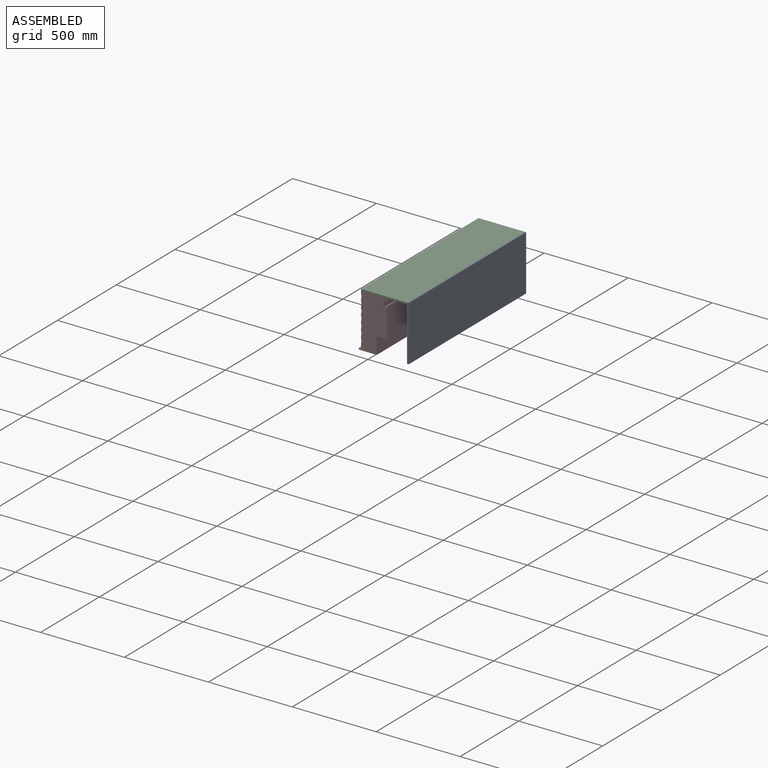
[diagram: assembled view]
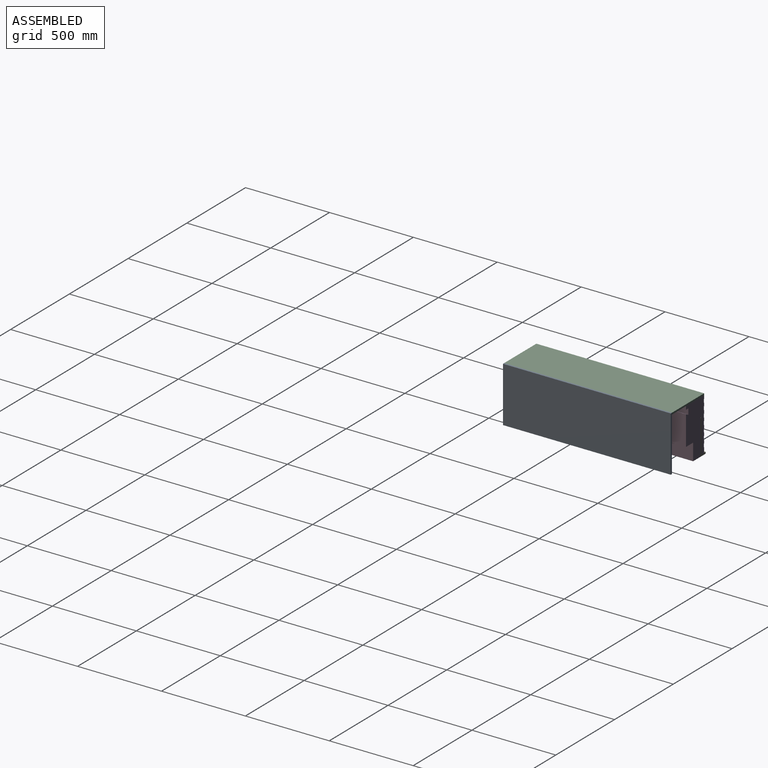
[diagram: assembled view, second angle]
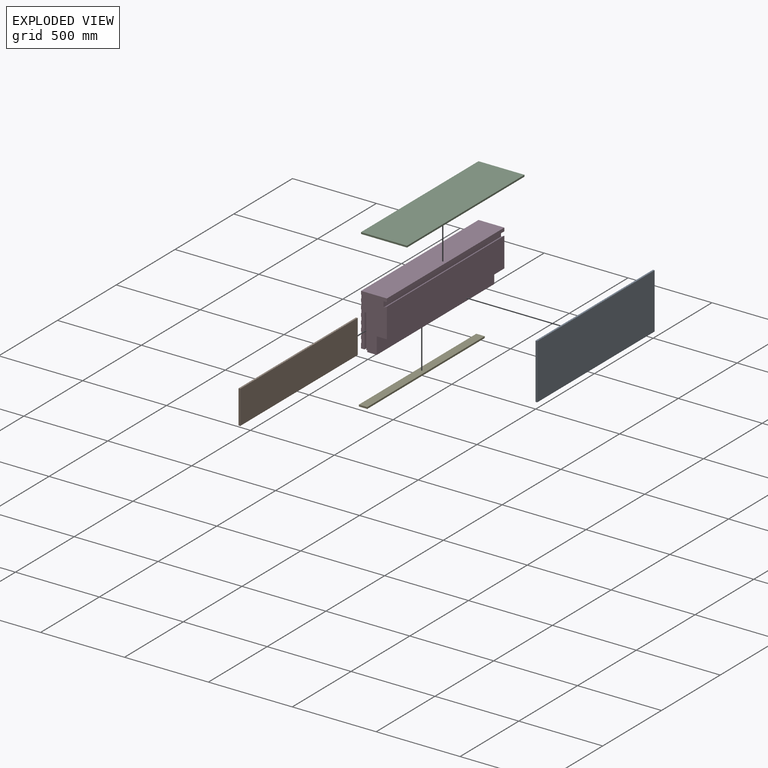
[diagram: exploded view]
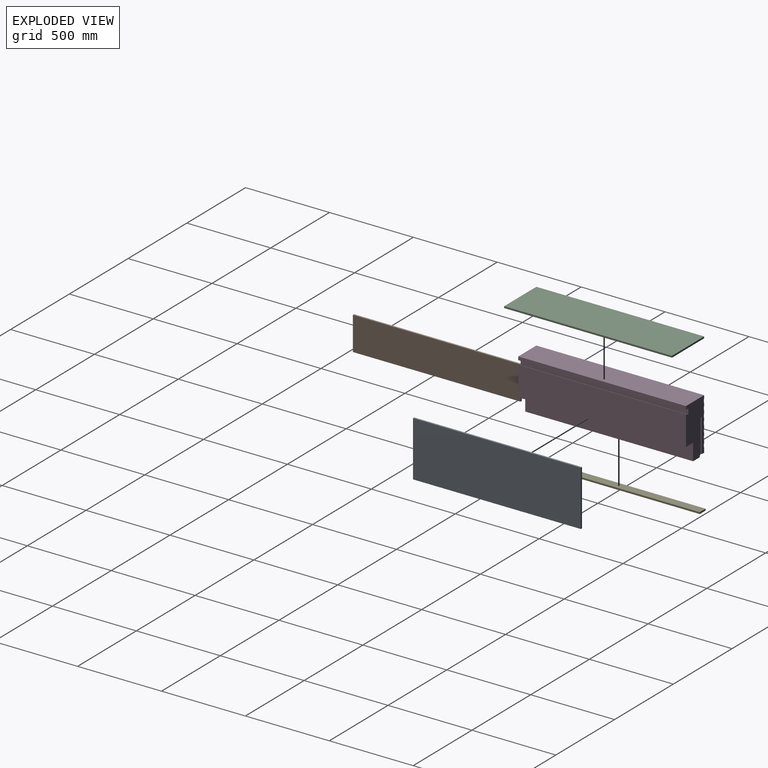
[diagram: exploded view, second angle]
ASSEMBLY  parts=5 mates=4
PART A: 6 faces, bbox 330x1000x10 mm
  f0: plane 1000x10mm, normal (-1,0,0), area 10000mm2, adj f1,f3,f4,f5
  f1: plane 1000x330mm, normal (0,0,-1), area 330000mm2, adj f0,f2,f4,f5
  f2: plane 1000x10mm, normal (1,0,0), area 10000mm2, adj f1,f3,f4,f5
  f3: plane 1000x330mm, normal (0,0,1), area 330000mm2, adj f0,f2,f4,f5
  f4: plane 330x10mm, normal (0,-1,0), area 3300mm2, adj f0,f1,f2,f3
  f5: plane 330x10mm, normal (0,1,0), area 3300mm2, adj f0,f1,f2,f3
PART B: 6 faces, bbox 200x1000x10 mm
  f0: plane 1000x10mm, normal (-1,0,0), area 10000mm2, adj f1,f3,f4,f5
  f1: plane 1000x200mm, normal (0,0,-1), area 200000mm2, adj f0,f2,f4,f5
  f2: plane 1000x10mm, normal (1,0,0), area 10000mm2, adj f1,f3,f4,f5
  f3: plane 1000x200mm, normal (0,0,1), area 200000mm2, adj f0,f2,f4,f5
  f4: plane 200x10mm, normal (0,-1,0), area 2000mm2, adj f0,f1,f2,f3
  f5: plane 200x10mm, normal (0,1,0), area 2000mm2, adj f0,f1,f2,f3
PART C: 6 faces, bbox 274x1000x10 mm
  f0: plane 1000x10mm, normal (-1,0,0), area 10000mm2, adj f1,f3,f4,f5
  f1: plane 1000x274mm, normal (0,0,-1), area 274000mm2, adj f0,f2,f4,f5
  f2: plane 1000x10mm, normal (1,0,0), area 10000mm2, adj f1,f3,f4,f5
  f3: plane 1000x274mm, normal (0,0,1), area 274000mm2, adj f0,f2,f4,f5
  f4: plane 274x10mm, normal (0,-1,0), area 2740mm2, adj f0,f1,f2,f3
  f5: plane 274x10mm, normal (0,1,0), area 2740mm2, adj f0,f1,f2,f3
PART D: 46 faces, bbox 154x320x1000 mm
  f0: plane 1000x176.11mm, normal (1,0,0), area 176114.3mm2, adj f1,f20,f22,f44
  f1: plane 320x154mm, normal (0,0,1), area 39912mm2, adj f0,f2,f3,f4,f5,f6,f7,f8
  f2: plane 1000x20mm, normal (-1,0,0), area 20000mm2, adj f1,f11,f22,f42
  f3: plane 1000x20mm, normal (-1,0,0), area 20000mm2, adj f1,f22,f39,f41
  f4: plane 1000x20mm, normal (-1,0,0), area 20000mm2, adj f1,f22,f36,f38
  f5: plane 1000x20mm, normal (-1,0,0), area 20000mm2, adj f1,f22,f33,f35
  f6: plane 1000x20mm, normal (-1,0,0), area 20000mm2, adj f1,f22,f30,f32
  f7: plane 1000x20mm, normal (-1,0,0), area 20000mm2, adj f1,f22,f27,f29
  f8: plane 1000x20mm, normal (-1,0,0), area 20000mm2, adj f1,f22,f24,f26
  f9: plane 1000x20mm, normal (0,-1,0), area 20000mm2, adj f1,f10,f21,f22
  f10: plane 1000x20mm, normal (1,0,0), area 20000mm2, adj f1,f9,f11,f22
  f11: plane 1000x154mm, normal (0,1,0), area 154000mm2, adj f1,f2,f10,f22
  f12: plane 1000x30mm, normal (-1,0,0), area 30000mm2, adj f1,f13,f22,f23
  f13: plane 1000x20.5mm, normal (0,-1,0), area 20500mm2, adj f1,f12,f14,f22
  f14: plane 1000x202mm, normal (1,0,0), area 202000mm2, adj f1,f13,f15,f22
  f15: cylinder r=10mm len=1000mm, axis (0,0,-1), area 11054.3mm2, adj f1,f14,f16,f22
  f16: plane 1000x202mm, normal (-1,0,0), area 202000mm2, adj f1,f15,f17,f22
  f17: plane 1000x6mm, normal (0,-1,0), area 6000mm2, adj f1,f16,f18,f22
  f18: plane 1000x10mm, normal (-1,0,0), area 10000mm2, adj f1,f17,f19,f22
  f19: plane 1000x57mm, normal (0,-1,0), area 57000mm2, adj f1,f18,f22,f45
  f20: plane 1000x20mm, normal (-0.45,0.89,0), area 22446.5mm2, adj f0,f1,f21,f22
  f21: plane 1000x34.08mm, normal (1,0,0), area 34076.2mm2, adj f1,f9,f20,f22
  f22: plane 320x154mm, normal (0,0,-1), area 39912mm2, adj f0,f2,f3,f4,f5,f6,f7,f8
  f23: plane 1000x2mm, normal (0.71,0.71,0), area 2828.4mm2, adj f1,f12,f22,f25
  f24: plane 1000x2mm, normal (0.71,-0.71,0), area 2828.4mm2, adj f1,f8,f22,f25
  f25: plane 1000x24mm, normal (-1,0,0), area 24000mm2, adj f1,f22,f23,f24
  f26: plane 1000x2mm, normal (0.71,0.71,0), area 2828.4mm2, adj f1,f8,f22,f28
  f27: plane 1000x2mm, normal (0.71,-0.71,0), area 2828.4mm2, adj f1,f7,f22,f28
  f28: plane 1000x24mm, normal (-1,0,0), area 24000mm2, adj f1,f22,f26,f27
  f29: plane 1000x2mm, normal (0.71,0.71,0), area 2828.4mm2, adj f1,f7,f22,f31
  f30: plane 1000x2mm, normal (0.71,-0.71,0), area 2828.4mm2, adj f1,f6,f22,f31
  f31: plane 1000x24mm, normal (-1,0,0), area 24000mm2, adj f1,f22,f29,f30
  f32: plane 1000x2mm, normal (0.71,0.71,0), area 2828.4mm2, adj f1,f6,f22,f34
  f33: plane 1000x2mm, normal (0.71,-0.71,0), area 2828.4mm2, adj f1,f5,f22,f34
  f34: plane 1000x24mm, normal (-1,0,0), area 24000mm2, adj f1,f22,f32,f33
  f35: plane 1000x2mm, normal (0.71,0.71,0), area 2828.4mm2, adj f1,f5,f22,f37
  f36: plane 1000x2mm, normal (0.71,-0.71,0), area 2828.4mm2, adj f1,f4,f22,f37
  f37: plane 1000x24mm, normal (-1,0,0), area 24000mm2, adj f1,f22,f35,f36
  f38: plane 1000x2mm, normal (0.71,0.71,0), area 2828.4mm2, adj f1,f4,f22,f40
  f39: plane 1000x2mm, normal (0.71,-0.71,0), area 2828.4mm2, adj f1,f3,f22,f40
  f40: plane 1000x24mm, normal (-1,0,0), area 24000mm2, adj f1,f22,f38,f39
  f41: plane 1000x2mm, normal (0.71,0.71,0), area 2828.4mm2, adj f1,f3,f22,f43
  f42: plane 1000x2mm, normal (0.71,-0.71,0), area 2828.4mm2, adj f1,f2,f22,f43
  f43: plane 1000x24mm, normal (-1,0,0), area 24000mm2, adj f1,f22,f41,f42
  f44: plane 1000x60mm, normal (0,-1,0), area 60000mm2, adj f0,f1,f22,f45
  f45: plane 1000x100mm, normal (1,0,0), area 100000mm2, adj f1,f19,f22,f44
PART E: 6 faces, bbox 50x1000x10 mm
  f0: plane 1000x10mm, normal (-1,0,0), area 10000mm2, adj f1,f3,f4,f5
  f1: plane 1000x50mm, normal (0,0,-1), area 50000mm2, adj f0,f2,f4,f5
  f2: plane 1000x10mm, normal (1,0,0), area 10000mm2, adj f1,f3,f4,f5
  f3: plane 1000x50mm, normal (0,0,1), area 50000mm2, adj f0,f2,f4,f5
  f4: plane 50x10mm, normal (0,-1,0), area 500mm2, adj f0,f1,f2,f3
  f5: plane 50x10mm, normal (0,1,0), area 500mm2, adj f0,f1,f2,f3
PLACE A rot(axis=(0,1,0),90deg) t=(83.17,500,65.28)mm
PLACE B rot(axis=(0,1,0),90deg) t=(-170.08,500,-54.72)mm
PLACE C t=(-190.83,500,55.28)mm fixed
PLACE D rot(axis=(1,0,0),90deg) t=(-17.59,500,-54.89)mm
PLACE E t=(-203.83,500,-264.72)mm
MATE fastened A.f1 <-> C.f2  axis (-1,0,0) through (83.17,-500,65.28)mm
MATE fastened B.f4 <-> D.f1  axis (0,-1,0) through (-159.83,-500,-52.72)mm
MATE fastened C.f1 <-> D.f11  axis (0,0,-1) through (-190.83,-500,55.28)mm
MATE fastened E.f4 <-> D.f1  axis (0,-1,0) through (-153.83,-500,-254.72)mm
